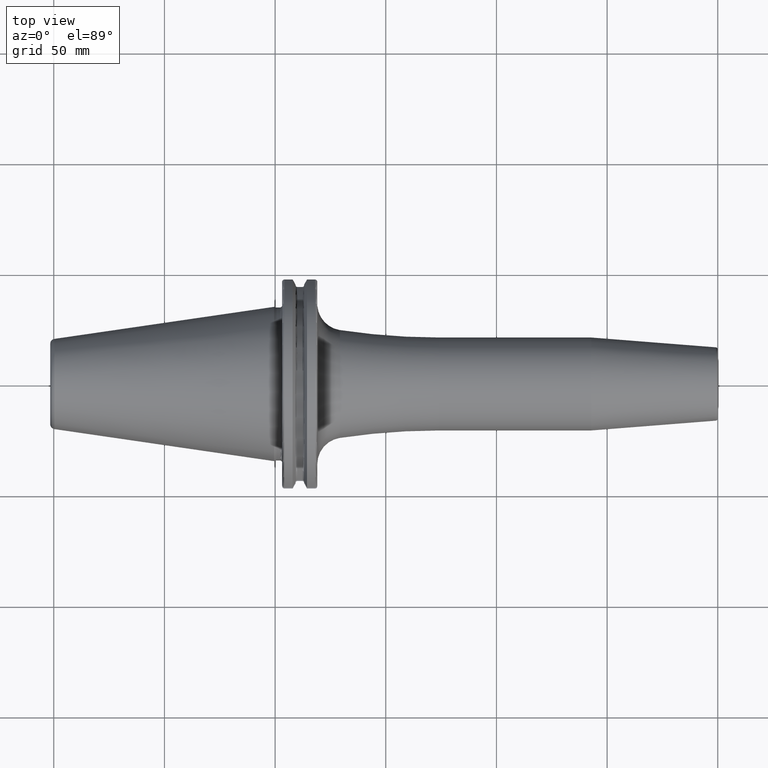
[diagram: clean part render]
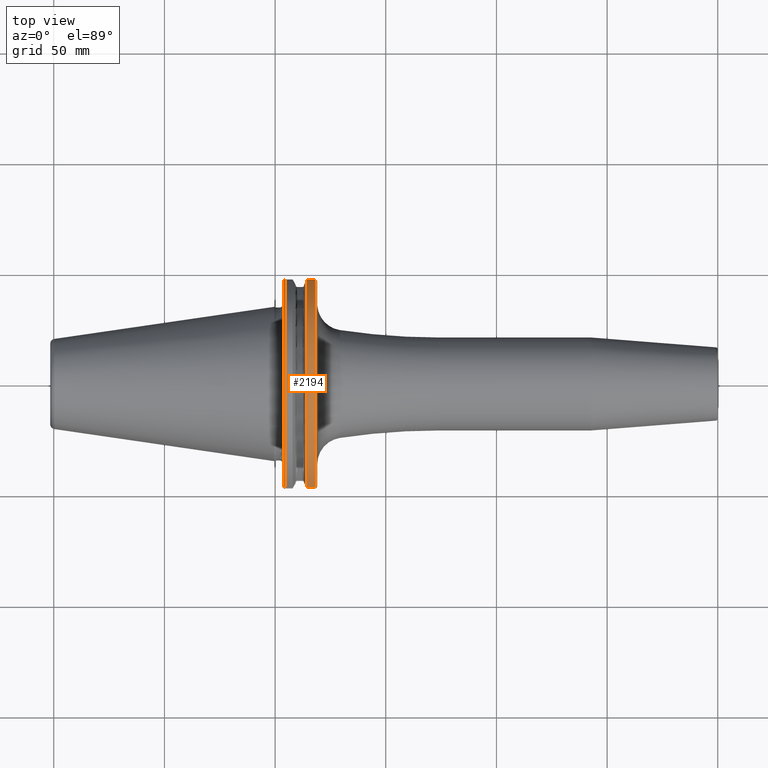
[diagram: same view with one face highlighted and labeled with its STEP entity id]
A machine part, top view. The second image highlights one B-rep face of the part: STEP entity #2194.
In plain terms, the highlighted cylindrical surface (partial cylindrical patch) has radius 48.7375 mm, axis along (1, 0, 0).
Its self-contained STEP definition (entity closure, byte-faithful):
#477=CARTESIAN_POINT('',(1.441537838583E1,4.699929686974E1,1.29E1));
#489=CARTESIAN_POINT('',(1.441537838583E1,-4.699929686974E1,1.29E1));
#509=DIRECTION('',(1.E0,0.E0,0.E0));
#510=VECTOR('',#509,3.634621614173E0);
#511=CARTESIAN_POINT('',(1.441537838583E1,4.699929686974E1,1.29E1));
#512=LINE('',#511,#510);
#513=CARTESIAN_POINT('',(1.805E1,0.E0,0.E0));
#514=DIRECTION('',(1.E0,0.E0,0.E0));
#515=DIRECTION('',(0.E0,9.643354064066E-1,2.646832521159E-1));
#516=AXIS2_PLACEMENT_3D('',#513,#514,#515);
#518=DIRECTION('',(1.E0,0.E0,0.E0));
#519=VECTOR('',#518,3.634621614173E0);
#520=CARTESIAN_POINT('',(1.441537838583E1,-4.699929686974E1,1.29E1));
#521=LINE('',#520,#519);
#522=CARTESIAN_POINT('',(1.441537838583E1,0.E0,0.E0));
#523=DIRECTION('',(1.E0,0.E0,0.E0));
#524=DIRECTION('',(0.E0,9.643354064066E-1,2.646832521159E-1));
#525=AXIS2_PLACEMENT_3D('',#522,#523,#524);
#1352=VERTEX_POINT('',#477);
#1353=VERTEX_POINT('',#489);
#1384=CARTESIAN_POINT('',(1.805E1,4.699929686974E1,1.29E1));
#1385=VERTEX_POINT('',#1384);
#1388=CARTESIAN_POINT('',(1.805E1,-4.699929686974E1,1.29E1));
#1389=VERTEX_POINT('',#1388);
#2182=CARTESIAN_POINT('',(-1.076325E2,0.E0,0.E0));
#2183=DIRECTION('',(1.E0,0.E0,0.E0));
#2184=DIRECTION('',(0.E0,-1.E0,0.E0));
#2185=AXIS2_PLACEMENT_3D('',#2182,#2183,#2184);
#2186=CYLINDRICAL_SURFACE('',#2185,4.87375E1);
#2187=ORIENTED_EDGE('',*,*,#2011,.T.);
#2189=ORIENTED_EDGE('',*,*,#2188,.T.);
#2190=ORIENTED_EDGE('',*,*,#2056,.F.);
#2191=ORIENTED_EDGE('',*,*,#2162,.F.);
#2192=EDGE_LOOP('',(#2187,#2189,#2190,#2191));
#2193=FACE_OUTER_BOUND('',#2192,.F.);
#2194=ADVANCED_FACE('',(#2193),#2186,.T.);
#517=CIRCLE('',#516,4.87375E1);
#526=CIRCLE('',#525,4.87375E1);
#2011=EDGE_CURVE('',#1352,#1385,#512,.T.);
#2056=EDGE_CURVE('',#1353,#1389,#521,.T.);
#2162=EDGE_CURVE('',#1352,#1353,#526,.T.);
#2188=EDGE_CURVE('',#1385,#1389,#517,.T.);